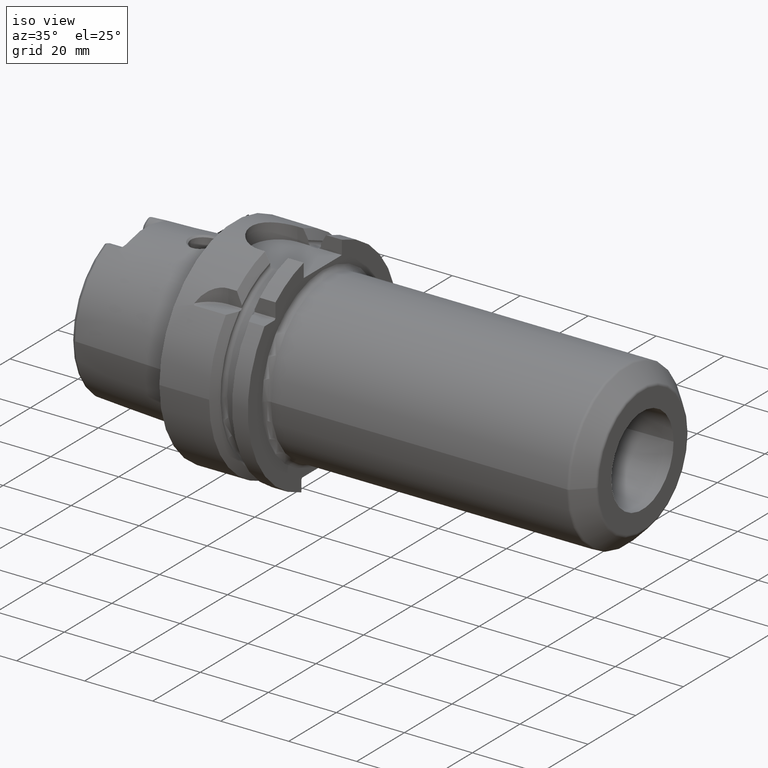
[diagram: clean part render]
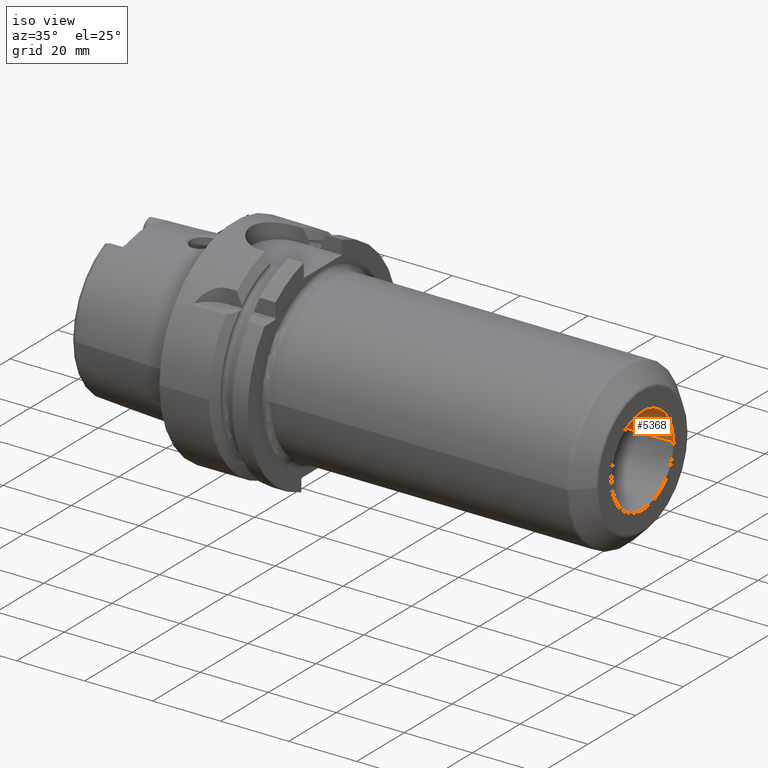
[diagram: same view with one face highlighted and labeled with its STEP entity id]
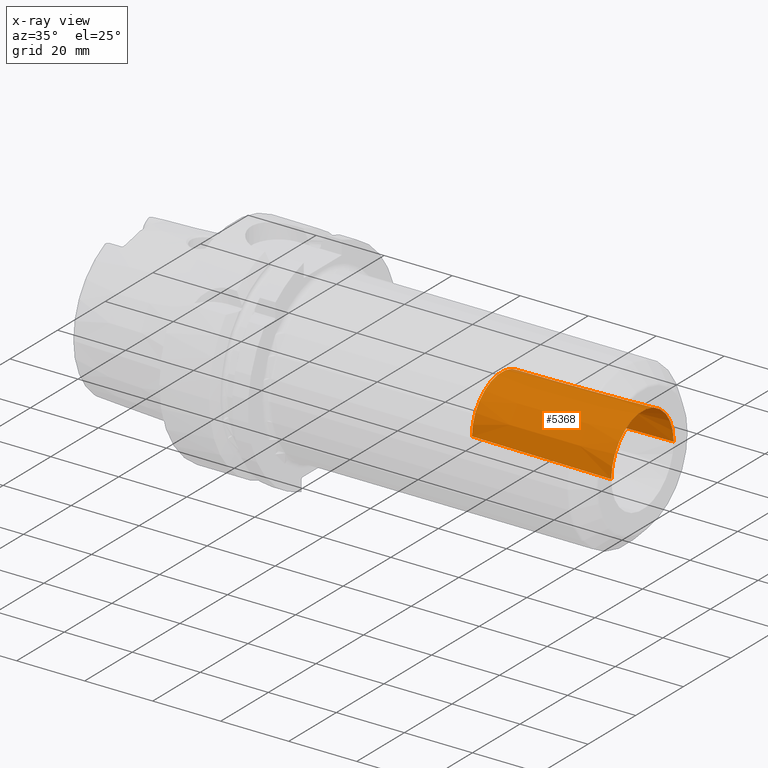
[diagram: x-ray of the same camera — body ghosted, the highlighted face saturated]
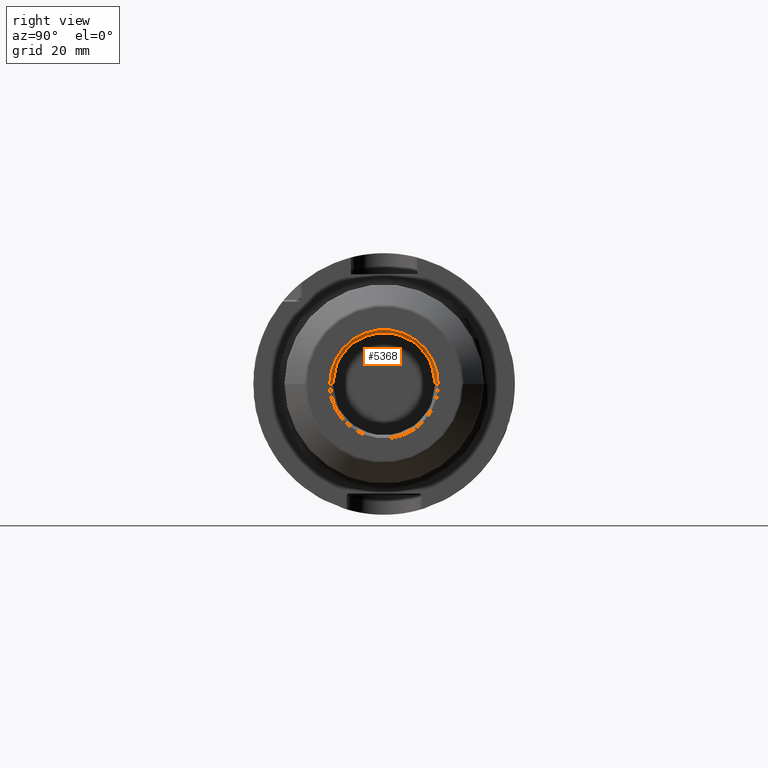
[diagram: same view with one face highlighted and labeled with its STEP entity id]
A machine part, iso view. The second image highlights one B-rep face of the part: STEP entity #5368.
The next image is the same camera in x-ray: the body ghosted, the highlighted face saturated — about 1% of this face is hidden behind the body in this view.
A second angle (right view) of the same face is appended — the face is thin or edge-on in the first view.
In plain terms, the highlighted conical surface has half-angle 0.985 deg.
Its self-contained STEP definition (entity closure, byte-faithful):
#2037=CARTESIAN_POINT('',(1.2E2,0.E0,0.E0));
#2038=DIRECTION('',(1.E0,0.E0,0.E0));
#2039=DIRECTION('',(0.E0,1.E0,0.E0));
#2040=AXIS2_PLACEMENT_3D('',#2037,#2038,#2039);
#2057=DIRECTION('',(-9.998521468005E-1,1.719548017513E-2,0.E0));
#2058=VECTOR('',#2057,4.149346181283E1);
#2059=CARTESIAN_POINT('',(1.2E2,-1.30735E1,0.E0));
#2060=LINE('',#2059,#2058);
#2061=DIRECTION('',(-9.998521468005E-1,-1.719548017513E-2,0.E0));
#2062=VECTOR('',#2061,4.149346181283E1);
#2063=CARTESIAN_POINT('',(1.2E2,1.30735E1,0.E0));
#2064=LINE('',#2063,#2062);
#2078=CARTESIAN_POINT('',(7.851267312825E1,0.E0,0.E0));
#2079=DIRECTION('',(1.E0,0.E0,0.E0));
#2080=DIRECTION('',(0.E0,1.E0,0.E0));
#2081=AXIS2_PLACEMENT_3D('',#2078,#2079,#2080);
#3102=CARTESIAN_POINT('',(7.851267312825E1,1.236E1,0.E0));
#3104=VERTEX_POINT('',#3102);
#3106=CARTESIAN_POINT('',(7.851267312825E1,-1.236E1,0.E0));
#3108=VERTEX_POINT('',#3106);
#3110=CARTESIAN_POINT('',(1.2E2,1.30735E1,0.E0));
#3111=CARTESIAN_POINT('',(1.2E2,-1.30735E1,0.E0));
#3112=VERTEX_POINT('',#3110);
#3113=VERTEX_POINT('',#3111);
#5354=CARTESIAN_POINT('',(9.925633656413E1,0.E0,0.E0));
#5355=DIRECTION('',(1.E0,0.E0,0.E0));
#5356=DIRECTION('',(0.E0,-1.E0,0.E0));
#5357=AXIS2_PLACEMENT_3D('',#5354,#5355,#5356);
#5358=CONICAL_SURFACE('',#5357,1.271675E1,9.85277E-1);
#5359=ORIENTED_EDGE('',*,*,#5347,.F.);
#5361=ORIENTED_EDGE('',*,*,#5360,.T.);
#5363=ORIENTED_EDGE('',*,*,#5362,.T.);
#5365=ORIENTED_EDGE('',*,*,#5364,.F.);
#5366=EDGE_LOOP('',(#5359,#5361,#5363,#5365));
#5367=FACE_OUTER_BOUND('',#5366,.F.);
#5368=ADVANCED_FACE('',(#5367),#5358,.F.);
#2041=CIRCLE('',#2040,1.30735E1);
#2082=CIRCLE('',#2081,1.236E1);
#5347=EDGE_CURVE('',#3112,#3113,#2041,.T.);
#5360=EDGE_CURVE('',#3112,#3104,#2064,.T.);
#5362=EDGE_CURVE('',#3104,#3108,#2082,.T.);
#5364=EDGE_CURVE('',#3113,#3108,#2060,.T.);